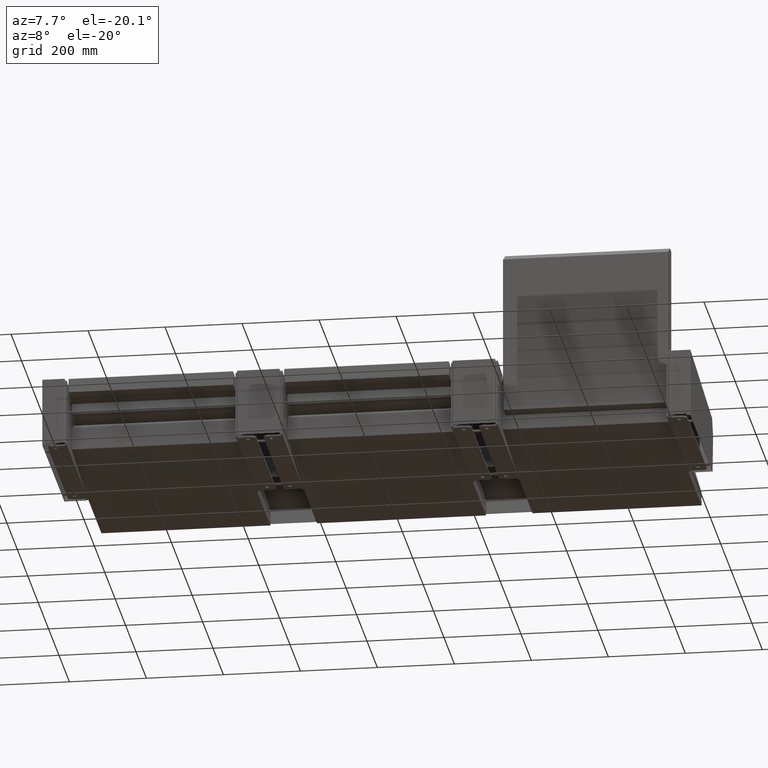
[diagram: clean part render]
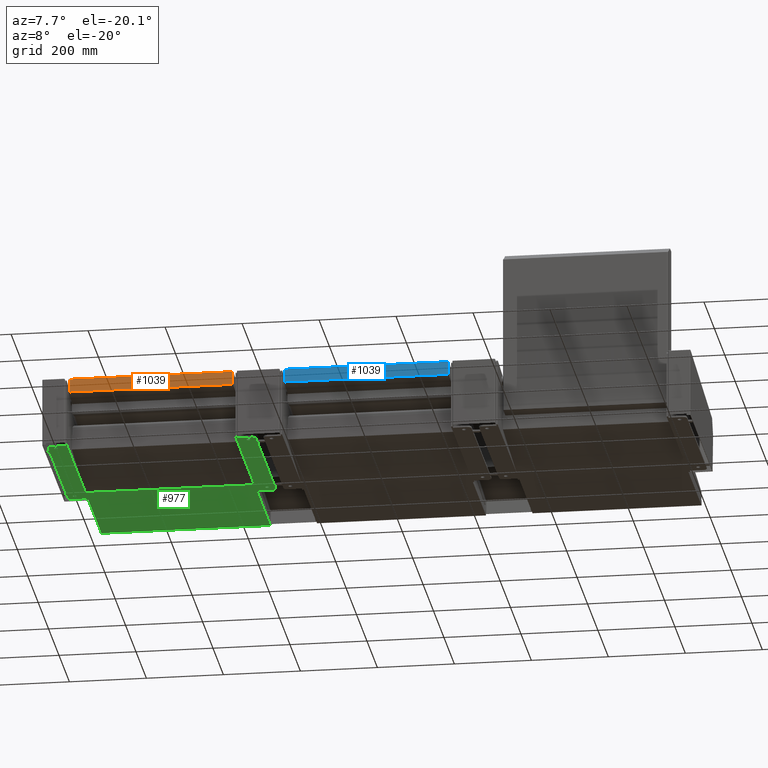
[diagram: same view with three faces highlighted in distinct colors, each labeled with its STEP entity id]
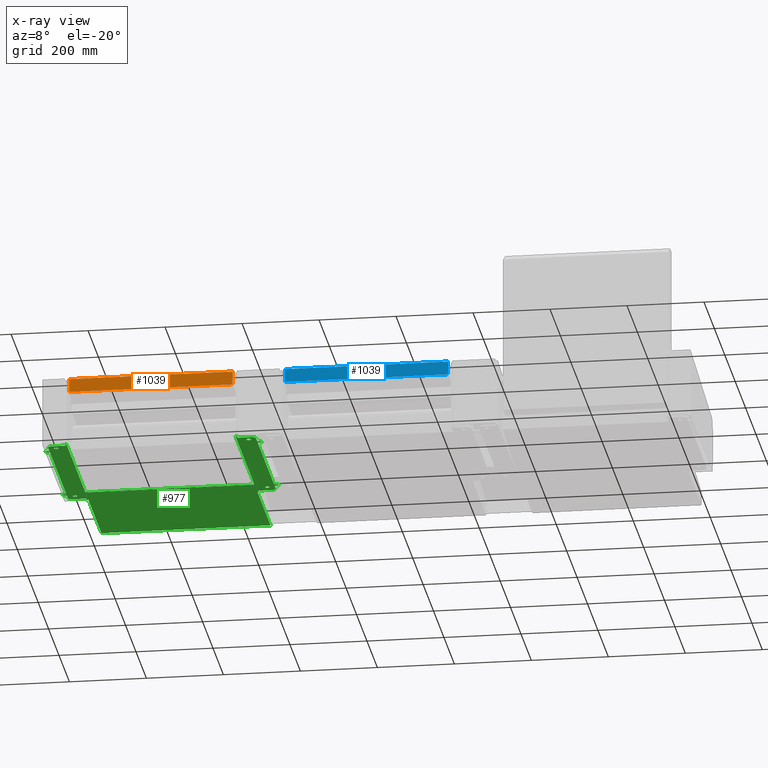
[diagram: x-ray of the same camera — body ghosted, the three highlighted faces saturated]
A machine part, auxiliary view with three faces highlighted in distinct colors.
The next image is the same camera in x-ray (body ghosted, the three faces saturated) — at least one of them is partly hidden behind the body in this view.
Their STEP definitions:

[orange] entity #1039 — the highlighted planar face has unit normal (0, 0.9962, -0.0872).
#1039 = ADVANCED_FACE ( 'NONE', ( #3609 ), #5792, .F. ) ;
#1400 = CARTESIAN_POINT ( 'NONE',  ( 212.0000000000000000, -19.99999999999998900, -89.00000000000000000 ) ) ;
#1403 = CARTESIAN_POINT ( 'NONE',  ( -212.0000000000000000, -19.99999999999998900, -89.00000000000000000 ) ) ;
#1406 = CARTESIAN_POINT ( 'NONE',  ( -212.0000000000000000, 16.00000000000001800, -89.00000000000000000 ) ) ;
#1407 = CARTESIAN_POINT ( 'NONE',  ( 212.0000000000000000, 16.00000000000001800, -89.00000000000000000 ) ) ;
#2591 = CARTESIAN_POINT ( 'NONE',  ( -212.0000000000000000, -21.99999999999998900, -89.00000000000000000 ) ) ;
#2596 = CARTESIAN_POINT ( 'NONE',  ( 214.0000000000000000, -19.99999999999998900, -89.00000000000000000 ) ) ;
#2598 = DIRECTION ( 'NONE',  ( -1.000000000000000000, 0.0000000000000000000, 0.0000000000000000000 ) ) ;
#2599 = DIRECTION ( 'NONE',  ( 0.0000000000000000000, 1.000000000000000000, 0.0000000000000000000 ) ) ;
#2600 = CARTESIAN_POINT ( 'NONE',  ( 214.0000000000000000, 16.00000000000001800, -89.00000000000000000 ) ) ;
#2601 = DIRECTION ( 'NONE',  ( 1.000000000000000000, -0.0000000000000000000, -0.0000000000000000000 ) ) ;
#2602 = CARTESIAN_POINT ( 'NONE',  ( 212.0000000000000000, -19.99999999999998600, -89.00000000000000000 ) ) ;
#2603 = DIRECTION ( 'NONE',  ( -0.0000000000000000000, -1.000000000000000000, -0.0000000000000000000 ) ) ;
#3179 = EDGE_CURVE ( 'NONE', #6581, #6584, #4223, .T. ) ;
#3180 = EDGE_CURVE ( 'NONE', #6584, #6587, #4221, .T. ) ;
#3181 = EDGE_CURVE ( 'NONE', #6587, #6588, #4227, .T. ) ;
#3182 = EDGE_CURVE ( 'NONE', #6588, #6581, #4229, .T. ) ;
#3609 = FACE_OUTER_BOUND ( 'NONE', #6854, .T. ) ;
#4221 = LINE ( 'NONE', #2591, #4228 ) ;
#4223 = LINE ( 'NONE', #2596, #4226 ) ;
#4226 = VECTOR ( 'NONE', #2598, 1000.000000000000000 ) ;
#4227 = LINE ( 'NONE', #2600, #4230 ) ;
#4228 = VECTOR ( 'NONE', #2599, 1000.000000000000000 ) ;
#4229 = LINE ( 'NONE', #2602, #4232 ) ;
#4230 = VECTOR ( 'NONE', #2601, 1000.000000000000000 ) ;
#4232 = VECTOR ( 'NONE', #2603, 1000.000000000000000 ) ;
#4776 = AXIS2_PLACEMENT_3D ( 'NONE', #5790, #5794, #5795 ) ;
#5045 = ORIENTED_EDGE ( 'NONE', *, *, #3182, .T. ) ;
#5046 = ORIENTED_EDGE ( 'NONE', *, *, #3181, .T. ) ;
#5047 = ORIENTED_EDGE ( 'NONE', *, *, #3180, .T. ) ;
#5048 = ORIENTED_EDGE ( 'NONE', *, *, #3179, .T. ) ;
#5790 = CARTESIAN_POINT ( 'NONE',  ( 214.0000000000000000, -21.99999999999998900, -89.00000000000000000 ) ) ;
#5792 = PLANE ( 'NONE',  #4776 ) ;
#5794 = DIRECTION ( 'NONE',  ( 0.0000000000000000000, 0.0000000000000000000, 1.000000000000000000 ) ) ;
#5795 = DIRECTION ( 'NONE',  ( 1.000000000000000000, 0.0000000000000000000, -0.0000000000000000000 ) ) ;
#6581 = VERTEX_POINT ( 'NONE', #1400 ) ;
#6584 = VERTEX_POINT ( 'NONE', #1403 ) ;
#6587 = VERTEX_POINT ( 'NONE', #1406 ) ;
#6588 = VERTEX_POINT ( 'NONE', #1407 ) ;
#6854 = EDGE_LOOP ( 'NONE', ( #5048, #5047, #5046, #5045 ) ) ;

[blue] entity #1039 — the highlighted planar face has unit normal (0, 0.9962, -0.0872).
#1039 = ADVANCED_FACE ( 'NONE', ( #3609 ), #5792, .F. ) ;
#1400 = CARTESIAN_POINT ( 'NONE',  ( 212.0000000000000000, -19.99999999999998900, -89.00000000000000000 ) ) ;
#1403 = CARTESIAN_POINT ( 'NONE',  ( -212.0000000000000000, -19.99999999999998900, -89.00000000000000000 ) ) ;
#1406 = CARTESIAN_POINT ( 'NONE',  ( -212.0000000000000000, 16.00000000000001800, -89.00000000000000000 ) ) ;
#1407 = CARTESIAN_POINT ( 'NONE',  ( 212.0000000000000000, 16.00000000000001800, -89.00000000000000000 ) ) ;
#2591 = CARTESIAN_POINT ( 'NONE',  ( -212.0000000000000000, -21.99999999999998900, -89.00000000000000000 ) ) ;
#2596 = CARTESIAN_POINT ( 'NONE',  ( 214.0000000000000000, -19.99999999999998900, -89.00000000000000000 ) ) ;
#2598 = DIRECTION ( 'NONE',  ( -1.000000000000000000, 0.0000000000000000000, 0.0000000000000000000 ) ) ;
#2599 = DIRECTION ( 'NONE',  ( 0.0000000000000000000, 1.000000000000000000, 0.0000000000000000000 ) ) ;
#2600 = CARTESIAN_POINT ( 'NONE',  ( 214.0000000000000000, 16.00000000000001800, -89.00000000000000000 ) ) ;
#2601 = DIRECTION ( 'NONE',  ( 1.000000000000000000, -0.0000000000000000000, -0.0000000000000000000 ) ) ;
#2602 = CARTESIAN_POINT ( 'NONE',  ( 212.0000000000000000, -19.99999999999998600, -89.00000000000000000 ) ) ;
#2603 = DIRECTION ( 'NONE',  ( -0.0000000000000000000, -1.000000000000000000, -0.0000000000000000000 ) ) ;
#3179 = EDGE_CURVE ( 'NONE', #6581, #6584, #4223, .T. ) ;
#3180 = EDGE_CURVE ( 'NONE', #6584, #6587, #4221, .T. ) ;
#3181 = EDGE_CURVE ( 'NONE', #6587, #6588, #4227, .T. ) ;
#3182 = EDGE_CURVE ( 'NONE', #6588, #6581, #4229, .T. ) ;
#3609 = FACE_OUTER_BOUND ( 'NONE', #6854, .T. ) ;
#4221 = LINE ( 'NONE', #2591, #4228 ) ;
#4223 = LINE ( 'NONE', #2596, #4226 ) ;
#4226 = VECTOR ( 'NONE', #2598, 1000.000000000000000 ) ;
#4227 = LINE ( 'NONE', #2600, #4230 ) ;
#4228 = VECTOR ( 'NONE', #2599, 1000.000000000000000 ) ;
#4229 = LINE ( 'NONE', #2602, #4232 ) ;
#4230 = VECTOR ( 'NONE', #2601, 1000.000000000000000 ) ;
#4232 = VECTOR ( 'NONE', #2603, 1000.000000000000000 ) ;
#4776 = AXIS2_PLACEMENT_3D ( 'NONE', #5790, #5794, #5795 ) ;
#5045 = ORIENTED_EDGE ( 'NONE', *, *, #3182, .T. ) ;
#5046 = ORIENTED_EDGE ( 'NONE', *, *, #3181, .T. ) ;
#5047 = ORIENTED_EDGE ( 'NONE', *, *, #3180, .T. ) ;
#5048 = ORIENTED_EDGE ( 'NONE', *, *, #3179, .T. ) ;
#5790 = CARTESIAN_POINT ( 'NONE',  ( 214.0000000000000000, -21.99999999999998900, -89.00000000000000000 ) ) ;
#5792 = PLANE ( 'NONE',  #4776 ) ;
#5794 = DIRECTION ( 'NONE',  ( 0.0000000000000000000, 0.0000000000000000000, 1.000000000000000000 ) ) ;
#5795 = DIRECTION ( 'NONE',  ( 1.000000000000000000, 0.0000000000000000000, -0.0000000000000000000 ) ) ;
#6581 = VERTEX_POINT ( 'NONE', #1400 ) ;
#6584 = VERTEX_POINT ( 'NONE', #1403 ) ;
#6587 = VERTEX_POINT ( 'NONE', #1406 ) ;
#6588 = VERTEX_POINT ( 'NONE', #1407 ) ;
#6854 = EDGE_LOOP ( 'NONE', ( #5048, #5047, #5046, #5045 ) ) ;

[green] entity #977 — the highlighted planar face has unit normal (0, 0, 1).
#18 = EDGE_LOOP ( 'NONE', ( #6379, #6378 ) ) ;
#323 = EDGE_CURVE ( 'NONE', #6658, #6664, #7819, .T. ) ;
#324 = EDGE_CURVE ( 'NONE', #6661, #6662, #7817, .T. ) ;
#328 = EDGE_CURVE ( 'NONE', #6665, #6666, #7829, .T. ) ;
#333 = EDGE_CURVE ( 'NONE', #6672, #6673, #7839, .T. ) ;
#335 = EDGE_CURVE ( 'NONE', #6655, #6674, #7843, .T. ) ;
#352 = EDGE_CURVE ( 'NONE', #6680, #6686, #7871, .T. ) ;
#361 = EDGE_CURVE ( 'NONE', #6685, #6682, #7891, .T. ) ;
#363 = EDGE_CURVE ( 'NONE', #6690, #6687, #7895, .T. ) ;
#364 = EDGE_CURVE ( 'NONE', #6687, #6655, #7897, .T. ) ;
#365 = EDGE_CURVE ( 'NONE', #6693, #6674, #7899, .T. ) ;
#366 = EDGE_CURVE ( 'NONE', #6693, #6665, #7900, .T. ) ;
#367 = EDGE_CURVE ( 'NONE', #6686, #6666, #7902, .T. ) ;
#368 = EDGE_CURVE ( 'NONE', #6692, #6680, #7904, .T. ) ;
#369 = EDGE_CURVE ( 'NONE', #6695, #6692, #7906, .T. ) ;
#370 = EDGE_CURVE ( 'NONE', #6695, #6698, #7889, .T. ) ;
#371 = EDGE_CURVE ( 'NONE', #6698, #6661, #7910, .T. ) ;
#372 = EDGE_CURVE ( 'NONE', #6662, #6694, #7912, .T. ) ;
#373 = EDGE_CURVE ( 'NONE', #6694, #6700, #7913, .T. ) ;
#374 = EDGE_CURVE ( 'NONE', #6700, #6651, #7915, .T. ) ;
#375 = EDGE_CURVE ( 'NONE', #6652, #6691, #7917, .T. ) ;
#376 = EDGE_CURVE ( 'NONE', #6691, #6702, #7919, .T. ) ;
#377 = EDGE_CURVE ( 'NONE', #6702, #6703, #7921, .T. ) ;
#378 = EDGE_CURVE ( 'NONE', #6703, #6704, #7923, .T. ) ;
#379 = EDGE_CURVE ( 'NONE', #6704, #6705, #7925, .T. ) ;
#380 = EDGE_CURVE ( 'NONE', #6705, #6706, #7927, .T. ) ;
#381 = EDGE_CURVE ( 'NONE', #6697, #6706, #7928, .T. ) ;
#382 = EDGE_CURVE ( 'NONE', #6697, #6708, #7930, .T. ) ;
#383 = EDGE_CURVE ( 'NONE', #6708, #6685, #7932, .T. ) ;
#384 = EDGE_CURVE ( 'NONE', #6682, #6699, #7934, .T. ) ;
#385 = EDGE_CURVE ( 'NONE', #6709, #6699, #7936, .T. ) ;
#386 = EDGE_CURVE ( 'NONE', #6672, #6709, #7908, .T. ) ;
#387 = EDGE_CURVE ( 'NONE', #6673, #6653, #7940, .T. ) ;
#388 = EDGE_CURVE ( 'NONE', #6656, #6710, #7942, .T. ) ;
#389 = EDGE_CURVE ( 'NONE', #6710, #6712, #7943, .T. ) ;
#390 = EDGE_CURVE ( 'NONE', #6712, #6658, #7945, .T. ) ;
#391 = EDGE_CURVE ( 'NONE', #6664, #6711, #7947, .T. ) ;
#392 = EDGE_CURVE ( 'NONE', #6711, #6714, #7949, .T. ) ;
#393 = EDGE_CURVE ( 'NONE', #6714, #6690, #7951, .T. ) ;
#394 = EDGE_CURVE ( 'NONE', #6634, #6633, #7953, .T. ) ;
#395 = EDGE_CURVE ( 'NONE', #6638, #6637, #7938, .T. ) ;
#396 = EDGE_CURVE ( 'NONE', #6630, #6629, #7955, .T. ) ;
#397 = EDGE_CURVE ( 'NONE', #6626, #6625, #7956, .T. ) ;
#977 = ADVANCED_FACE ( 'NONE', ( #3496, #3498, #3493, #3497, #3481 ), #3769, .F. ) ;
#1202 = CARTESIAN_POINT ( 'NONE',  ( -250.0000000000000000, 285.0000000000000600, -63.10000000000000100 ) ) ;
#1203 = DIRECTION ( 'NONE',  ( -0.0000000000000000000, -0.0000000000000000000, -1.000000000000000000 ) ) ;
#1204 = DIRECTION ( 'NONE',  ( 1.000000000000000000, 0.0000000000000000000, 0.0000000000000000000 ) ) ;
#1212 = CARTESIAN_POINT ( 'NONE',  ( -250.0000000000000000, -74.99999999999995700, -63.10000000000000100 ) ) ;
#1213 = DIRECTION ( 'NONE',  ( -0.0000000000000000000, -0.0000000000000000000, -1.000000000000000000 ) ) ;
#1214 = DIRECTION ( 'NONE',  ( 1.000000000000000000, 0.0000000000000000000, 0.0000000000000000000 ) ) ;
#1222 = CARTESIAN_POINT ( 'NONE',  ( 250.0000000000000000, -74.99999999999995700, -63.10000000000000100 ) ) ;
#1223 = DIRECTION ( 'NONE',  ( 0.0000000000000000000, 0.0000000000000000000, -1.000000000000000000 ) ) ;
#1224 = DIRECTION ( 'NONE',  ( -1.000000000000000000, 0.0000000000000000000, 0.0000000000000000000 ) ) ;
#1232 = CARTESIAN_POINT ( 'NONE',  ( 250.0000000000000000, 285.0000000000000600, -63.10000000000000100 ) ) ;
#1233 = DIRECTION ( 'NONE',  ( 0.0000000000000000000, 0.0000000000000000000, -1.000000000000000000 ) ) ;
#1234 = DIRECTION ( 'NONE',  ( -1.000000000000000000, 0.0000000000000000000, 0.0000000000000000000 ) ) ;
#1238 = CARTESIAN_POINT ( 'NONE',  ( 270.0000000000000000, 308.0000000000000600, -63.10000000000000100 ) ) ;
#1266 = DIRECTION ( 'NONE',  ( 0.0000000000000000000, -1.000000000000000000, 0.0000000000000000000 ) ) ;
#1271 = CARTESIAN_POINT ( 'NONE',  ( -270.0000000000000000, -92.00000000000005700, -63.10000000000000100 ) ) ;
#1272 = DIRECTION ( 'NONE',  ( 0.0000000000000000000, 1.000000000000000000, 0.0000000000000000000 ) ) ;
#1443 = CARTESIAN_POINT ( 'NONE',  ( -244.5000000000000000, 285.0000000000000600, -63.10000000000000100 ) ) ;
#1444 = CARTESIAN_POINT ( 'NONE',  ( -255.5000000000000000, 285.0000000000000600, -63.10000000000000100 ) ) ;
#1447 = CARTESIAN_POINT ( 'NONE',  ( -244.5000000000000000, -74.99999999999995700, -63.10000000000000100 ) ) ;
#1448 = CARTESIAN_POINT ( 'NONE',  ( -255.5000000000000000, -74.99999999999995700, -63.10000000000000100 ) ) ;
#1451 = CARTESIAN_POINT ( 'NONE',  ( 255.5000000000000000, -74.99999999999995700, -63.10000000000000100 ) ) ;
#1452 = CARTESIAN_POINT ( 'NONE',  ( 244.5000000000000000, -74.99999999999995700, -63.10000000000000100 ) ) ;
#1455 = CARTESIAN_POINT ( 'NONE',  ( 255.5000000000000000, 285.0000000000000600, -63.10000000000000100 ) ) ;
#1456 = CARTESIAN_POINT ( 'NONE',  ( 244.5000000000000000, 285.0000000000000600, -63.10000000000000100 ) ) ;
#1469 = CARTESIAN_POINT ( 'NONE',  ( 270.0000000000000000, 268.0000000000000000, -63.10000000000000100 ) ) ;
#1470 = CARTESIAN_POINT ( 'NONE',  ( 270.0000000000000000, -47.99999999999998600, -63.10000000000000100 ) ) ;
#1471 = CARTESIAN_POINT ( 'NONE',  ( -270.0000000000000000, -82.00000000000005700, -63.10000000000000100 ) ) ;
#1473 = CARTESIAN_POINT ( 'NONE',  ( -260.0000000000000000, 308.0000000000000600, -63.10000000000000100 ) ) ;
#1474 = CARTESIAN_POINT ( 'NONE',  ( -270.0000000000000000, -57.99999999999993600, -63.10000000000000100 ) ) ;
#1476 = CARTESIAN_POINT ( 'NONE',  ( -270.0000000000000000, -47.99999999999987900, -63.10000000000000100 ) ) ;
#1479 = CARTESIAN_POINT ( 'NONE',  ( 270.0000000000000000, 298.0000000000000600, -63.10000000000000100 ) ) ;
#1480 = CARTESIAN_POINT ( 'NONE',  ( 270.0000000000000000, 278.0000000000000000, -63.10000000000000100 ) ) ;
#1482 = CARTESIAN_POINT ( 'NONE',  ( -270.0000000000000000, 268.0000000000000000, -63.10000000000000100 ) ) ;
#1483 = CARTESIAN_POINT ( 'NONE',  ( -219.5000000000000000, 318.0000000000000600, -63.10000000000000100 ) ) ;
#1484 = CARTESIAN_POINT ( 'NONE',  ( -219.5000000000000000, 570.1701421626239600, -63.10000000000000100 ) ) ;
#1490 = CARTESIAN_POINT ( 'NONE',  ( -223.5000000000000000, -92.00000000000008500, -63.10000000000000100 ) ) ;
#1491 = CARTESIAN_POINT ( 'NONE',  ( -260.0000000000000000, -92.00000000000005700, -63.10000000000000100 ) ) ;
#1492 = CARTESIAN_POINT ( 'NONE',  ( -223.5000000000000000, 308.0000000000000600, -63.10000000000000100 ) ) ;
#1498 = CARTESIAN_POINT ( 'NONE',  ( 219.5000000000000000, 318.0000000000000600, -63.10000000000000100 ) ) ;
#1500 = CARTESIAN_POINT ( 'NONE',  ( -219.5000000000000000, 262.2877704774642200, -63.10000000000000100 ) ) ;
#1503 = CARTESIAN_POINT ( 'NONE',  ( 219.5000000000000000, 262.2877704774455800, -63.10000000000000100 ) ) ;
#1504 = CARTESIAN_POINT ( 'NONE',  ( 219.5000000000000000, 570.1701421626239600, -63.10000000000000100 ) ) ;
#1505 = CARTESIAN_POINT ( 'NONE',  ( -270.0000000000000000, 298.0000000000000600, -63.10000000000000100 ) ) ;
#1508 = CARTESIAN_POINT ( 'NONE',  ( -270.0000000000000000, 278.0000000000000600, -63.10000000000000100 ) ) ;
#1509 = CARTESIAN_POINT ( 'NONE',  ( 280.0000000000000000, -47.99999999999998600, -63.10000000000000100 ) ) ;
#1510 = CARTESIAN_POINT ( 'NONE',  ( 223.5000000000000000, 318.0000000000000600, -63.10000000000000100 ) ) ;
#1511 = CARTESIAN_POINT ( 'NONE',  ( -223.5000000000000000, 318.0000000000000600, -63.10000000000000100 ) ) ;
#1512 = CARTESIAN_POINT ( 'NONE',  ( 280.0000000000000000, 278.0000000000000000, -63.10000000000000100 ) ) ;
#1513 = CARTESIAN_POINT ( 'NONE',  ( 223.5000000000000000, 308.0000000000000600, -63.10000000000000100 ) ) ;
#1515 = CARTESIAN_POINT ( 'NONE',  ( 223.5000000000000000, -101.9999999999999700, -63.10000000000000100 ) ) ;
#1516 = CARTESIAN_POINT ( 'NONE',  ( 260.0000000000000000, 308.0000000000000600, -63.10000000000000100 ) ) ;
#1517 = CARTESIAN_POINT ( 'NONE',  ( -219.5000000000000000, -101.9999999999999700, -63.10000000000000100 ) ) ;
#1518 = CARTESIAN_POINT ( 'NONE',  ( 280.0000000000000000, 268.0000000000000000, -63.10000000000000100 ) ) ;
#1520 = CARTESIAN_POINT ( 'NONE',  ( 280.0000000000000000, -57.99999999999999300, -63.10000000000000100 ) ) ;
#1521 = CARTESIAN_POINT ( 'NONE',  ( 270.0000000000000000, -57.99999999999999300, -63.10000000000000100 ) ) ;
#1522 = CARTESIAN_POINT ( 'NONE',  ( 270.0000000000000000, -81.99999999999995700, -63.10000000000000100 ) ) ;
#1523 = CARTESIAN_POINT ( 'NONE',  ( 260.0000000000000000, -91.99999999999997200, -63.10000000000000100 ) ) ;
#1524 = CARTESIAN_POINT ( 'NONE',  ( 223.5000000000000000, -91.99999999999997200, -63.10000000000000100 ) ) ;
#1526 = CARTESIAN_POINT ( 'NONE',  ( 219.5000000000000000, -101.9999999999999700, -63.10000000000000100 ) ) ;
#1527 = CARTESIAN_POINT ( 'NONE',  ( -223.5000000000000000, -101.9999999999999700, -63.10000000000000100 ) ) ;
#1528 = CARTESIAN_POINT ( 'NONE',  ( -280.0000000000000000, -57.99999999999993600, -63.10000000000000100 ) ) ;
#1529 = CARTESIAN_POINT ( 'NONE',  ( -280.0000000000000000, 268.0000000000000600, -63.10000000000000100 ) ) ;
#1530 = CARTESIAN_POINT ( 'NONE',  ( -280.0000000000000000, -47.99999999999992200, -63.10000000000000100 ) ) ;
#1532 = CARTESIAN_POINT ( 'NONE',  ( -280.0000000000000000, 278.0000000000000600, -63.10000000000000100 ) ) ;
#1753 = CARTESIAN_POINT ( 'NONE',  ( 270.0000000000000000, 308.0000000000000600, -63.10000000000000100 ) ) ;
#1758 = CARTESIAN_POINT ( 'NONE',  ( -270.0000000000000000, -92.00000000000005700, -63.10000000000000100 ) ) ;
#1760 = DIRECTION ( 'NONE',  ( 0.0000000000000000000, 1.000000000000000000, 0.0000000000000000000 ) ) ;
#1761 = DIRECTION ( 'NONE',  ( 0.0000000000000000000, -1.000000000000000000, 0.0000000000000000000 ) ) ;
#1768 = CARTESIAN_POINT ( 'NONE',  ( -219.5000000000000000, 262.2877704774583700, -63.10000000000000100 ) ) ;
#1769 = DIRECTION ( 'NONE',  ( 0.0000000000000000000, 1.000000000000000000, 0.0000000000000000000 ) ) ;
#1777 = CARTESIAN_POINT ( 'NONE',  ( -270.0000000000000000, -92.00000000000005700, -63.10000000000000100 ) ) ;
#1778 = DIRECTION ( 'NONE',  ( -1.000000000000000000, -0.0000000000000000000, -0.0000000000000000000 ) ) ;
#1781 = CARTESIAN_POINT ( 'NONE',  ( -270.0000000000000000, 308.0000000000000600, -63.10000000000000100 ) ) ;
#1782 = DIRECTION ( 'NONE',  ( 1.000000000000000000, 0.0000000000000000000, 0.0000000000000000000 ) ) ;
#1813 = CARTESIAN_POINT ( 'NONE',  ( 219.5000000000000000, 262.2877704774583700, -63.10000000000000100 ) ) ;
#1821 = DIRECTION ( 'NONE',  ( 0.0000000000000000000, 1.000000000000000000, 0.0000000000000000000 ) ) ;
#2121 = AXIS2_PLACEMENT_3D ( 'NONE', #2249, #2250, #2251 ) ;
#2122 = AXIS2_PLACEMENT_3D ( 'NONE', #2264, #2265, #2266 ) ;
#2123 = AXIS2_PLACEMENT_3D ( 'NONE', #2281, #2282, #2283 ) ;
#2124 = AXIS2_PLACEMENT_3D ( 'NONE', #2297, #2298, #2299 ) ;
#2125 = AXIS2_PLACEMENT_3D ( 'NONE', #2311, #2312, #2313 ) ;
#2126 = AXIS2_PLACEMENT_3D ( 'NONE', #2314, #2315, #2316 ) ;
#2127 = AXIS2_PLACEMENT_3D ( 'NONE', #2317, #2318, #2319 ) ;
#2128 = AXIS2_PLACEMENT_3D ( 'NONE', #2322, #2323, #2324 ) ;
#2193 = AXIS2_PLACEMENT_3D ( 'NONE', #3770, #3766, #3772 ) ;
#2236 = DIRECTION ( 'NONE',  ( 0.0000000000000000000, -1.000000000000000000, 0.0000000000000000000 ) ) ;
#2239 = CARTESIAN_POINT ( 'NONE',  ( -223.5000000000000000, 318.0000000000000600, -63.10000000000000100 ) ) ;
#2241 = CARTESIAN_POINT ( 'NONE',  ( 219.5000000000000000, 262.2877704774583700, -63.10000000000000100 ) ) ;
#2242 = DIRECTION ( 'NONE',  ( -1.000000000000000000, -0.0000000000000000000, -0.0000000000000000000 ) ) ;
#2245 = CARTESIAN_POINT ( 'NONE',  ( -270.0000000000000000, -92.00000000000005700, -63.10000000000000100 ) ) ;
#2246 = DIRECTION ( 'NONE',  ( 0.0000000000000000000, 1.000000000000000000, 0.0000000000000000000 ) ) ;
#2247 = DIRECTION ( 'NONE',  ( 1.000000000000000000, 0.0000000000000000000, 0.0000000000000000000 ) ) ;
#2248 = CARTESIAN_POINT ( 'NONE',  ( 219.5000000000000000, 308.0000000000000600, -63.10000000000000100 ) ) ;
#2249 = CARTESIAN_POINT ( 'NONE',  ( -260.0000000000000000, 298.0000000000000600, -63.10000000000000100 ) ) ;
#2250 = DIRECTION ( 'NONE',  ( -0.0000000000000000000, -0.0000000000000000000, -1.000000000000000000 ) ) ;
#2251 = DIRECTION ( 'NONE',  ( 1.000000000000000000, 0.0000000000000000000, 0.0000000000000000000 ) ) ;
#2252 = CARTESIAN_POINT ( 'NONE',  ( -223.5000000000000000, 318.0000000000000600, -63.10000000000000100 ) ) ;
#2253 = DIRECTION ( 'NONE',  ( 1.000000000000000000, -0.0000000000000000000, -0.0000000000000000000 ) ) ;
#2254 = CARTESIAN_POINT ( 'NONE',  ( 219.5000000000000000, 570.1701421626239600, -63.10000000000000100 ) ) ;
#2255 = DIRECTION ( 'NONE',  ( -1.000000000000000000, -0.0000000000000000000, -0.0000000000000000000 ) ) ;
#2256 = CARTESIAN_POINT ( 'NONE',  ( 223.5000000000000000, 318.0000000000000600, -63.10000000000000100 ) ) ;
#2257 = DIRECTION ( 'NONE',  ( -1.000000000000000000, -0.0000000000000000000, -0.0000000000000000000 ) ) ;
#2258 = CARTESIAN_POINT ( 'NONE',  ( 223.5000000000000000, -101.9999999999999700, -63.10000000000000100 ) ) ;
#2259 = CARTESIAN_POINT ( 'NONE',  ( 270.0000000000000000, 278.0000000000000000, -63.10000000000000100 ) ) ;
#2260 = DIRECTION ( 'NONE',  ( 0.0000000000000000000, 1.000000000000000000, 0.0000000000000000000 ) ) ;
#2261 = DIRECTION ( 'NONE',  ( 1.000000000000000000, 0.0000000000000000000, 0.0000000000000000000 ) ) ;
#2262 = CARTESIAN_POINT ( 'NONE',  ( 219.4999999999999400, -91.99999999999997200, -63.10000000000000100 ) ) ;
#2263 = DIRECTION ( 'NONE',  ( -1.000000000000000000, -0.0000000000000000000, -0.0000000000000000000 ) ) ;
#2264 = CARTESIAN_POINT ( 'NONE',  ( 260.0000000000000000, 298.0000000000000600, -63.10000000000000100 ) ) ;
#2265 = DIRECTION ( 'NONE',  ( -0.0000000000000000000, -0.0000000000000000000, -1.000000000000000000 ) ) ;
#2266 = DIRECTION ( 'NONE',  ( 1.000000000000000000, 0.0000000000000000000, 0.0000000000000000000 ) ) ;
#2267 = CARTESIAN_POINT ( 'NONE',  ( 280.0000000000000000, 278.0000000000000000, -63.10000000000000100 ) ) ;
#2268 = DIRECTION ( 'NONE',  ( 0.0000000000000000000, -1.000000000000000000, 0.0000000000000000000 ) ) ;
#2269 = CARTESIAN_POINT ( 'NONE',  ( 270.0000000000000000, 268.0000000000000000, -63.10000000000000100 ) ) ;
#2270 = DIRECTION ( 'NONE',  ( -1.000000000000000000, -0.0000000000000000000, -0.0000000000000000000 ) ) ;
#2271 = CARTESIAN_POINT ( 'NONE',  ( 270.0000000000000000, -47.99999999999998600, -63.10000000000000100 ) ) ;
#2272 = DIRECTION ( 'NONE',  ( 1.000000000000000000, 0.0000000000000000000, 0.0000000000000000000 ) ) ;
#2273 = CARTESIAN_POINT ( 'NONE',  ( 280.0000000000000000, -57.99999999999999300, -63.10000000000000100 ) ) ;
#2274 = DIRECTION ( 'NONE',  ( -0.0000000000000000000, -1.000000000000000000, -0.0000000000000000000 ) ) ;
#2275 = CARTESIAN_POINT ( 'NONE',  ( 270.0000000000000000, -57.99999999999999300, -63.10000000000000100 ) ) ;
#2276 = DIRECTION ( 'NONE',  ( -1.000000000000000000, -0.0000000000000000000, -0.0000000000000000000 ) ) ;
#2277 = CARTESIAN_POINT ( 'NONE',  ( 270.0000000000000000, 308.0000000000000600, -63.10000000000000100 ) ) ;
#2278 = DIRECTION ( 'NONE',  ( 0.0000000000000000000, -1.000000000000000000, 0.0000000000000000000 ) ) ;
#2279 = DIRECTION ( 'NONE',  ( -1.000000000000000000, 0.0000000000000000000, 0.0000000000000000000 ) ) ;
#2280 = CARTESIAN_POINT ( 'NONE',  ( -223.5000000000000000, 318.0000000000000600, -63.10000000000000100 ) ) ;
#2281 = CARTESIAN_POINT ( 'NONE',  ( 260.0000000000000000, -81.99999999999995700, -63.10000000000000100 ) ) ;
#2282 = DIRECTION ( 'NONE',  ( -0.0000000000000000000, -0.0000000000000000000, -1.000000000000000000 ) ) ;
#2283 = DIRECTION ( 'NONE',  ( 1.000000000000000000, 0.0000000000000000000, 0.0000000000000000000 ) ) ;
#2284 = CARTESIAN_POINT ( 'NONE',  ( 223.5000000000000000, -101.9999999999999700, -63.10000000000000100 ) ) ;
#2285 = DIRECTION ( 'NONE',  ( 0.0000000000000000000, 1.000000000000000000, 0.0000000000000000000 ) ) ;
#2286 = CARTESIAN_POINT ( 'NONE',  ( 223.5000000000000000, -101.9999999999999700, -63.10000000000000100 ) ) ;
#2287 = DIRECTION ( 'NONE',  ( -1.000000000000000000, -0.0000000000000000000, -0.0000000000000000000 ) ) ;
#2288 = CARTESIAN_POINT ( 'NONE',  ( 219.5000000000000000, 308.0000000000000600, -63.10000000000000100 ) ) ;
#2289 = DIRECTION ( 'NONE',  ( 1.387778780781445700E-016, 1.000000000000000000, -0.0000000000000000000 ) ) ;
#2290 = CARTESIAN_POINT ( 'NONE',  ( -219.5000000000000000, -92.00000000000005700, -63.10000000000000100 ) ) ;
#2291 = DIRECTION ( 'NONE',  ( -0.0000000000000000000, -1.000000000000000000, -0.0000000000000000000 ) ) ;
#2292 = CARTESIAN_POINT ( 'NONE',  ( -223.5000000000000000, -101.9999999999999700, -63.10000000000000100 ) ) ;
#2293 = CARTESIAN_POINT ( 'NONE',  ( -270.0000000000000000, -57.99999999999993600, -63.10000000000000100 ) ) ;
#2294 = DIRECTION ( 'NONE',  ( 1.000000000000000000, -0.0000000000000000000, -0.0000000000000000000 ) ) ;
#2295 = DIRECTION ( 'NONE',  ( 0.0000000000000000000, -1.000000000000000000, 0.0000000000000000000 ) ) ;
#2297 = CARTESIAN_POINT ( 'NONE',  ( -260.0000000000000000, -82.00000000000005700, -63.10000000000000100 ) ) ;
#2298 = DIRECTION ( 'NONE',  ( -0.0000000000000000000, -0.0000000000000000000, -1.000000000000000000 ) ) ;
#2299 = DIRECTION ( 'NONE',  ( 1.000000000000000000, 0.0000000000000000000, 0.0000000000000000000 ) ) ;
#2300 = CARTESIAN_POINT ( 'NONE',  ( -280.0000000000000000, -57.99999999999993600, -63.10000000000000100 ) ) ;
#2301 = DIRECTION ( 'NONE',  ( 0.0000000000000000000, 1.000000000000000000, 0.0000000000000000000 ) ) ;
#2302 = CARTESIAN_POINT ( 'NONE',  ( -270.0000000000000000, -47.99999999999992200, -63.10000000000000100 ) ) ;
#2303 = DIRECTION ( 'NONE',  ( 1.000000000000000000, -0.0000000000000000000, -0.0000000000000000000 ) ) ;
#2304 = CARTESIAN_POINT ( 'NONE',  ( -270.0000000000000000, 268.0000000000000000, -63.10000000000000100 ) ) ;
#2305 = DIRECTION ( 'NONE',  ( -1.000000000000000000, 5.551115123125778000E-015, 0.0000000000000000000 ) ) ;
#2306 = CARTESIAN_POINT ( 'NONE',  ( -280.0000000000000000, 268.0000000000000600, -63.10000000000000100 ) ) ;
#2307 = DIRECTION ( 'NONE',  ( 0.0000000000000000000, 1.000000000000000000, 0.0000000000000000000 ) ) ;
#2308 = CARTESIAN_POINT ( 'NONE',  ( -270.0000000000000000, 278.0000000000000600, -63.10000000000000100 ) ) ;
#2309 = DIRECTION ( 'NONE',  ( 1.000000000000000000, -0.0000000000000000000, -0.0000000000000000000 ) ) ;
#2311 = CARTESIAN_POINT ( 'NONE',  ( 250.0000000000000000, -74.99999999999995700, -63.10000000000000100 ) ) ;
#2312 = DIRECTION ( 'NONE',  ( 0.0000000000000000000, 0.0000000000000000000, -1.000000000000000000 ) ) ;
#2313 = DIRECTION ( 'NONE',  ( -1.000000000000000000, 0.0000000000000000000, 0.0000000000000000000 ) ) ;
#2314 = CARTESIAN_POINT ( 'NONE',  ( 250.0000000000000000, 285.0000000000000600, -63.10000000000000100 ) ) ;
#2315 = DIRECTION ( 'NONE',  ( 0.0000000000000000000, 0.0000000000000000000, -1.000000000000000000 ) ) ;
#2316 = DIRECTION ( 'NONE',  ( -1.000000000000000000, 0.0000000000000000000, 0.0000000000000000000 ) ) ;
#2317 = CARTESIAN_POINT ( 'NONE',  ( -250.0000000000000000, -74.99999999999995700, -63.10000000000000100 ) ) ;
#2318 = DIRECTION ( 'NONE',  ( -0.0000000000000000000, -0.0000000000000000000, -1.000000000000000000 ) ) ;
#2319 = DIRECTION ( 'NONE',  ( 1.000000000000000000, 0.0000000000000000000, 0.0000000000000000000 ) ) ;
#2322 = CARTESIAN_POINT ( 'NONE',  ( -250.0000000000000000, 285.0000000000000600, -63.10000000000000100 ) ) ;
#2323 = DIRECTION ( 'NONE',  ( -0.0000000000000000000, -0.0000000000000000000, -1.000000000000000000 ) ) ;
#2324 = DIRECTION ( 'NONE',  ( 1.000000000000000000, 0.0000000000000000000, 0.0000000000000000000 ) ) ;
#3258 = EDGE_CURVE ( 'NONE', #6625, #6626, #4327, .T. ) ;
#3262 = EDGE_CURVE ( 'NONE', #6629, #6630, #4334, .T. ) ;
#3266 = EDGE_CURVE ( 'NONE', #6633, #6634, #4340, .T. ) ;
#3270 = EDGE_CURVE ( 'NONE', #6637, #6638, #4346, .T. ) ;
#3287 = EDGE_CURVE ( 'NONE', #6651, #6652, #4375, .T. ) ;
#3290 = EDGE_CURVE ( 'NONE', #6653, #6656, #4391, .T. ) ;
#3481 = FACE_BOUND ( 'NONE', #18, .T. ) ;
#3493 = FACE_BOUND ( 'NONE', #6915, .T. ) ;
#3496 = FACE_OUTER_BOUND ( 'NONE', #6887, .T. ) ;
#3497 = FACE_BOUND ( 'NONE', #6914, .T. ) ;
#3498 = FACE_BOUND ( 'NONE', #6916, .T. ) ;
#3766 = DIRECTION ( 'NONE',  ( 0.0000000000000000000, 0.0000000000000000000, 1.000000000000000000 ) ) ;
#3769 = PLANE ( 'NONE',  #2193 ) ;
#3770 = CARTESIAN_POINT ( 'NONE',  ( 219.5000000000000000, 262.2877704774583700, -63.10000000000000100 ) ) ;
#3772 = DIRECTION ( 'NONE',  ( 1.000000000000000000, 0.0000000000000000000, -0.0000000000000000000 ) ) ;
#4327 = CIRCLE ( 'NONE', #4933, 5.500000000000005300 ) ;
#4334 = CIRCLE ( 'NONE', #4935, 5.500000000000005300 ) ;
#4340 = CIRCLE ( 'NONE', #4937, 5.500000000000005300 ) ;
#4346 = CIRCLE ( 'NONE', #4939, 5.500000000000005300 ) ;
#4375 = LINE ( 'NONE', #1238, #4388 ) ;
#4388 = VECTOR ( 'NONE', #1266, 1000.000000000000000 ) ;
#4391 = LINE ( 'NONE', #1271, #4394 ) ;
#4394 = VECTOR ( 'NONE', #1272, 1000.000000000000000 ) ;
#4933 = AXIS2_PLACEMENT_3D ( 'NONE', #1202, #1203, #1204 ) ;
#4935 = AXIS2_PLACEMENT_3D ( 'NONE', #1212, #1213, #1214 ) ;
#4937 = AXIS2_PLACEMENT_3D ( 'NONE', #1222, #1223, #1224 ) ;
#4939 = AXIS2_PLACEMENT_3D ( 'NONE', #1232, #1233, #1234 ) ;
#6378 = ORIENTED_EDGE ( 'NONE', *, *, #3258, .F. ) ;
#6379 = ORIENTED_EDGE ( 'NONE', *, *, #397, .F. ) ;
#6380 = ORIENTED_EDGE ( 'NONE', *, *, #3262, .F. ) ;
#6381 = ORIENTED_EDGE ( 'NONE', *, *, #396, .F. ) ;
#6382 = ORIENTED_EDGE ( 'NONE', *, *, #3270, .F. ) ;
#6383 = ORIENTED_EDGE ( 'NONE', *, *, #395, .F. ) ;
#6384 = ORIENTED_EDGE ( 'NONE', *, *, #3266, .F. ) ;
#6385 = ORIENTED_EDGE ( 'NONE', *, *, #394, .F. ) ;
#6386 = ORIENTED_EDGE ( 'NONE', *, *, #393, .T. ) ;
#6387 = ORIENTED_EDGE ( 'NONE', *, *, #392, .T. ) ;
#6388 = ORIENTED_EDGE ( 'NONE', *, *, #391, .T. ) ;
#6389 = ORIENTED_EDGE ( 'NONE', *, *, #323, .T. ) ;
#6390 = ORIENTED_EDGE ( 'NONE', *, *, #390, .T. ) ;
#6391 = ORIENTED_EDGE ( 'NONE', *, *, #389, .T. ) ;
#6392 = ORIENTED_EDGE ( 'NONE', *, *, #388, .T. ) ;
#6393 = ORIENTED_EDGE ( 'NONE', *, *, #3290, .T. ) ;
#6394 = ORIENTED_EDGE ( 'NONE', *, *, #387, .T. ) ;
#6395 = ORIENTED_EDGE ( 'NONE', *, *, #333, .T. ) ;
#6396 = ORIENTED_EDGE ( 'NONE', *, *, #386, .F. ) ;
#6397 = ORIENTED_EDGE ( 'NONE', *, *, #385, .F. ) ;
#6398 = ORIENTED_EDGE ( 'NONE', *, *, #384, .T. ) ;
#6399 = ORIENTED_EDGE ( 'NONE', *, *, #361, .T. ) ;
#6400 = ORIENTED_EDGE ( 'NONE', *, *, #383, .T. ) ;
#6401 = ORIENTED_EDGE ( 'NONE', *, *, #382, .T. ) ;
#6402 = ORIENTED_EDGE ( 'NONE', *, *, #381, .F. ) ;
#6403 = ORIENTED_EDGE ( 'NONE', *, *, #380, .T. ) ;
#6404 = ORIENTED_EDGE ( 'NONE', *, *, #379, .T. ) ;
#6405 = ORIENTED_EDGE ( 'NONE', *, *, #378, .T. ) ;
#6406 = ORIENTED_EDGE ( 'NONE', *, *, #377, .T. ) ;
#6407 = ORIENTED_EDGE ( 'NONE', *, *, #376, .T. ) ;
#6408 = ORIENTED_EDGE ( 'NONE', *, *, #375, .T. ) ;
#6409 = ORIENTED_EDGE ( 'NONE', *, *, #3287, .T. ) ;
#6410 = ORIENTED_EDGE ( 'NONE', *, *, #374, .T. ) ;
#6411 = ORIENTED_EDGE ( 'NONE', *, *, #373, .T. ) ;
#6412 = ORIENTED_EDGE ( 'NONE', *, *, #372, .T. ) ;
#6413 = ORIENTED_EDGE ( 'NONE', *, *, #324, .T. ) ;
#6414 = ORIENTED_EDGE ( 'NONE', *, *, #371, .T. ) ;
#6415 = ORIENTED_EDGE ( 'NONE', *, *, #370, .T. ) ;
#6416 = ORIENTED_EDGE ( 'NONE', *, *, #369, .F. ) ;
#6417 = ORIENTED_EDGE ( 'NONE', *, *, #368, .F. ) ;
#6418 = ORIENTED_EDGE ( 'NONE', *, *, #352, .F. ) ;
#6419 = ORIENTED_EDGE ( 'NONE', *, *, #367, .F. ) ;
#6420 = ORIENTED_EDGE ( 'NONE', *, *, #328, .T. ) ;
#6421 = ORIENTED_EDGE ( 'NONE', *, *, #366, .T. ) ;
#6422 = ORIENTED_EDGE ( 'NONE', *, *, #365, .F. ) ;
#6423 = ORIENTED_EDGE ( 'NONE', *, *, #335, .T. ) ;
#6424 = ORIENTED_EDGE ( 'NONE', *, *, #364, .T. ) ;
#6425 = ORIENTED_EDGE ( 'NONE', *, *, #363, .T. ) ;
#6625 = VERTEX_POINT ( 'NONE', #1443 ) ;
#6626 = VERTEX_POINT ( 'NONE', #1444 ) ;
#6629 = VERTEX_POINT ( 'NONE', #1447 ) ;
#6630 = VERTEX_POINT ( 'NONE', #1448 ) ;
#6633 = VERTEX_POINT ( 'NONE', #1451 ) ;
#6634 = VERTEX_POINT ( 'NONE', #1452 ) ;
#6637 = VERTEX_POINT ( 'NONE', #1455 ) ;
#6638 = VERTEX_POINT ( 'NONE', #1456 ) ;
#6651 = VERTEX_POINT ( 'NONE', #1469 ) ;
#6652 = VERTEX_POINT ( 'NONE', #1470 ) ;
#6653 = VERTEX_POINT ( 'NONE', #1471 ) ;
#6655 = VERTEX_POINT ( 'NONE', #1473 ) ;
#6656 = VERTEX_POINT ( 'NONE', #1474 ) ;
#6658 = VERTEX_POINT ( 'NONE', #1476 ) ;
#6661 = VERTEX_POINT ( 'NONE', #1479 ) ;
#6662 = VERTEX_POINT ( 'NONE', #1480 ) ;
#6664 = VERTEX_POINT ( 'NONE', #1482 ) ;
#6665 = VERTEX_POINT ( 'NONE', #1483 ) ;
#6666 = VERTEX_POINT ( 'NONE', #1484 ) ;
#6672 = VERTEX_POINT ( 'NONE', #1490 ) ;
#6673 = VERTEX_POINT ( 'NONE', #1491 ) ;
#6674 = VERTEX_POINT ( 'NONE', #1492 ) ;
#6680 = VERTEX_POINT ( 'NONE', #1498 ) ;
#6682 = VERTEX_POINT ( 'NONE', #1500 ) ;
#6685 = VERTEX_POINT ( 'NONE', #1503 ) ;
#6686 = VERTEX_POINT ( 'NONE', #1504 ) ;
#6687 = VERTEX_POINT ( 'NONE', #1505 ) ;
#6690 = VERTEX_POINT ( 'NONE', #1508 ) ;
#6691 = VERTEX_POINT ( 'NONE', #1509 ) ;
#6692 = VERTEX_POINT ( 'NONE', #1510 ) ;
#6693 = VERTEX_POINT ( 'NONE', #1511 ) ;
#6694 = VERTEX_POINT ( 'NONE', #1512 ) ;
#6695 = VERTEX_POINT ( 'NONE', #1513 ) ;
#6697 = VERTEX_POINT ( 'NONE', #1515 ) ;
#6698 = VERTEX_POINT ( 'NONE', #1516 ) ;
#6699 = VERTEX_POINT ( 'NONE', #1517 ) ;
#6700 = VERTEX_POINT ( 'NONE', #1518 ) ;
#6702 = VERTEX_POINT ( 'NONE', #1520 ) ;
#6703 = VERTEX_POINT ( 'NONE', #1521 ) ;
#6704 = VERTEX_POINT ( 'NONE', #1522 ) ;
#6705 = VERTEX_POINT ( 'NONE', #1523 ) ;
#6706 = VERTEX_POINT ( 'NONE', #1524 ) ;
#6708 = VERTEX_POINT ( 'NONE', #1526 ) ;
#6709 = VERTEX_POINT ( 'NONE', #1527 ) ;
#6710 = VERTEX_POINT ( 'NONE', #1528 ) ;
#6711 = VERTEX_POINT ( 'NONE', #1529 ) ;
#6712 = VERTEX_POINT ( 'NONE', #1530 ) ;
#6714 = VERTEX_POINT ( 'NONE', #1532 ) ;
#6887 = EDGE_LOOP ( 'NONE', ( #6425, #6424, #6423, #6422, #6421, #6420, #6419, #6418, #6417, #6416, #6415, #6414, #6413, #6412, #6411, #6410, #6409, #6408, #6407, #6406, #6405, #6404, #6403, #6402, #6401, #6400, #6399, #6398, #6397, #6396, #6395, #6394, #6393, #6392, #6391, #6390, #6389, #6388, #6387, #6386 ) ) ;
#6914 = EDGE_LOOP ( 'NONE', ( #6381, #6380 ) ) ;
#6915 = EDGE_LOOP ( 'NONE', ( #6383, #6382 ) ) ;
#6916 = EDGE_LOOP ( 'NONE', ( #6385, #6384 ) ) ;
#7817 = LINE ( 'NONE', #1753, #7824 ) ;
#7819 = LINE ( 'NONE', #1758, #7822 ) ;
#7822 = VECTOR ( 'NONE', #1760, 1000.000000000000000 ) ;
#7824 = VECTOR ( 'NONE', #1761, 1000.000000000000000 ) ;
#7829 = LINE ( 'NONE', #1768, #7832 ) ;
#7832 = VECTOR ( 'NONE', #1769, 1000.000000000000000 ) ;
#7839 = LINE ( 'NONE', #1777, #7842 ) ;
#7842 = VECTOR ( 'NONE', #1778, 1000.000000000000000 ) ;
#7843 = LINE ( 'NONE', #1781, #7846 ) ;
#7846 = VECTOR ( 'NONE', #1782, 1000.000000000000000 ) ;
#7871 = LINE ( 'NONE', #1813, #7876 ) ;
#7876 = VECTOR ( 'NONE', #1821, 1000.000000000000000 ) ;
#7889 = LINE ( 'NONE', #2248, #7911 ) ;
#7891 = LINE ( 'NONE', #2241, #7894 ) ;
#7894 = VECTOR ( 'NONE', #2242, 1000.000000000000000 ) ;
#7895 = LINE ( 'NONE', #2245, #7898 ) ;
#7897 = CIRCLE ( 'NONE', #2121, 10.00000000000000900 ) ;
#7898 = VECTOR ( 'NONE', #2246, 1000.000000000000000 ) ;
#7899 = LINE ( 'NONE', #2239, #7901 ) ;
#7900 = LINE ( 'NONE', #2252, #7903 ) ;
#7901 = VECTOR ( 'NONE', #2236, 1000.000000000000000 ) ;
#7902 = LINE ( 'NONE', #2254, #7905 ) ;
#7903 = VECTOR ( 'NONE', #2253, 1000.000000000000000 ) ;
#7904 = LINE ( 'NONE', #2256, #7907 ) ;
#7905 = VECTOR ( 'NONE', #2255, 1000.000000000000000 ) ;
#7906 = LINE ( 'NONE', #2258, #7909 ) ;
#7907 = VECTOR ( 'NONE', #2257, 1000.000000000000000 ) ;
#7908 = LINE ( 'NONE', #2280, #7941 ) ;
#7909 = VECTOR ( 'NONE', #2260, 1000.000000000000000 ) ;
#7910 = CIRCLE ( 'NONE', #2122, 10.00000000000000900 ) ;
#7911 = VECTOR ( 'NONE', #2261, 1000.000000000000000 ) ;
#7912 = LINE ( 'NONE', #2259, #7914 ) ;
#7913 = LINE ( 'NONE', #2267, #7916 ) ;
#7914 = VECTOR ( 'NONE', #2247, 1000.000000000000000 ) ;
#7915 = LINE ( 'NONE', #2269, #7918 ) ;
#7916 = VECTOR ( 'NONE', #2268, 1000.000000000000000 ) ;
#7917 = LINE ( 'NONE', #2271, #7920 ) ;
#7918 = VECTOR ( 'NONE', #2270, 1000.000000000000000 ) ;
#7919 = LINE ( 'NONE', #2273, #7922 ) ;
#7920 = VECTOR ( 'NONE', #2272, 1000.000000000000000 ) ;
#7921 = LINE ( 'NONE', #2275, #7924 ) ;
#7922 = VECTOR ( 'NONE', #2274, 1000.000000000000000 ) ;
#7923 = LINE ( 'NONE', #2277, #7926 ) ;
#7924 = VECTOR ( 'NONE', #2276, 1000.000000000000000 ) ;
#7925 = CIRCLE ( 'NONE', #2123, 10.00000000000000900 ) ;
#7926 = VECTOR ( 'NONE', #2278, 1000.000000000000000 ) ;
#7927 = LINE ( 'NONE', #2262, #7929 ) ;
#7928 = LINE ( 'NONE', #2284, #7931 ) ;
#7929 = VECTOR ( 'NONE', #2263, 1000.000000000000000 ) ;
#7930 = LINE ( 'NONE', #2286, #7933 ) ;
#7931 = VECTOR ( 'NONE', #2285, 1000.000000000000000 ) ;
#7932 = LINE ( 'NONE', #2288, #7935 ) ;
#7933 = VECTOR ( 'NONE', #2287, 1000.000000000000000 ) ;
#7934 = LINE ( 'NONE', #2290, #7937 ) ;
#7935 = VECTOR ( 'NONE', #2289, 1000.000000000000000 ) ;
#7936 = LINE ( 'NONE', #2292, #7939 ) ;
#7937 = VECTOR ( 'NONE', #2291, 1000.000000000000000 ) ;
#7938 = CIRCLE ( 'NONE', #2126, 5.500000000000005300 ) ;
#7939 = VECTOR ( 'NONE', #2294, 1000.000000000000000 ) ;
#7940 = CIRCLE ( 'NONE', #2124, 10.00000000000000900 ) ;
#7941 = VECTOR ( 'NONE', #2295, 1000.000000000000000 ) ;
#7942 = LINE ( 'NONE', #2293, #7944 ) ;
#7943 = LINE ( 'NONE', #2300, #7946 ) ;
#7944 = VECTOR ( 'NONE', #2279, 1000.000000000000000 ) ;
#7945 = LINE ( 'NONE', #2302, #7948 ) ;
#7946 = VECTOR ( 'NONE', #2301, 1000.000000000000000 ) ;
#7947 = LINE ( 'NONE', #2304, #7950 ) ;
#7948 = VECTOR ( 'NONE', #2303, 1000.000000000000000 ) ;
#7949 = LINE ( 'NONE', #2306, #7952 ) ;
#7950 = VECTOR ( 'NONE', #2305, 1000.000000000000000 ) ;
#7951 = LINE ( 'NONE', #2308, #7954 ) ;
#7952 = VECTOR ( 'NONE', #2307, 1000.000000000000000 ) ;
#7953 = CIRCLE ( 'NONE', #2125, 5.500000000000005300 ) ;
#7954 = VECTOR ( 'NONE', #2309, 1000.000000000000000 ) ;
#7955 = CIRCLE ( 'NONE', #2127, 5.500000000000005300 ) ;
#7956 = CIRCLE ( 'NONE', #2128, 5.500000000000005300 ) ;